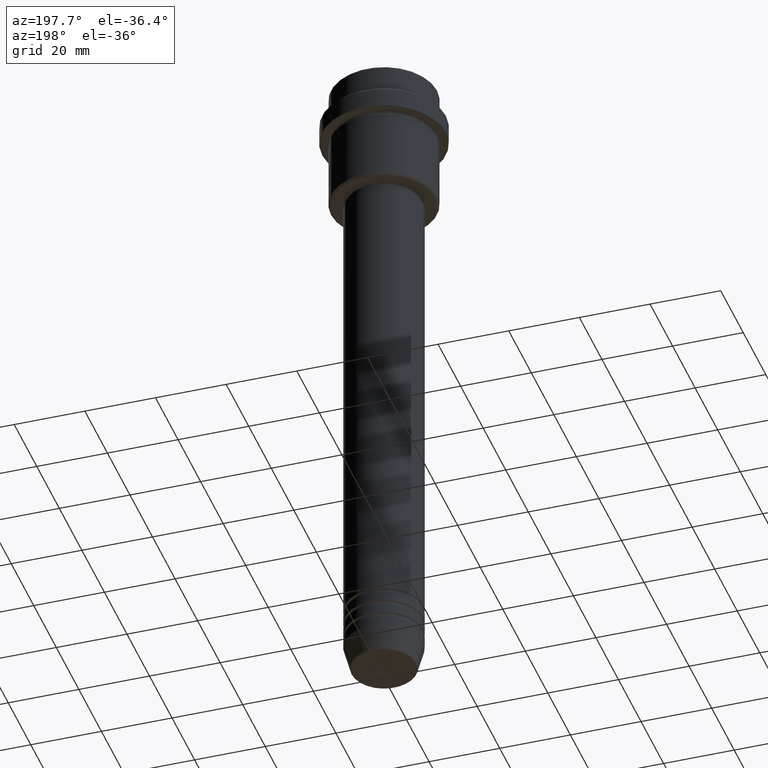
[diagram: clean part render]
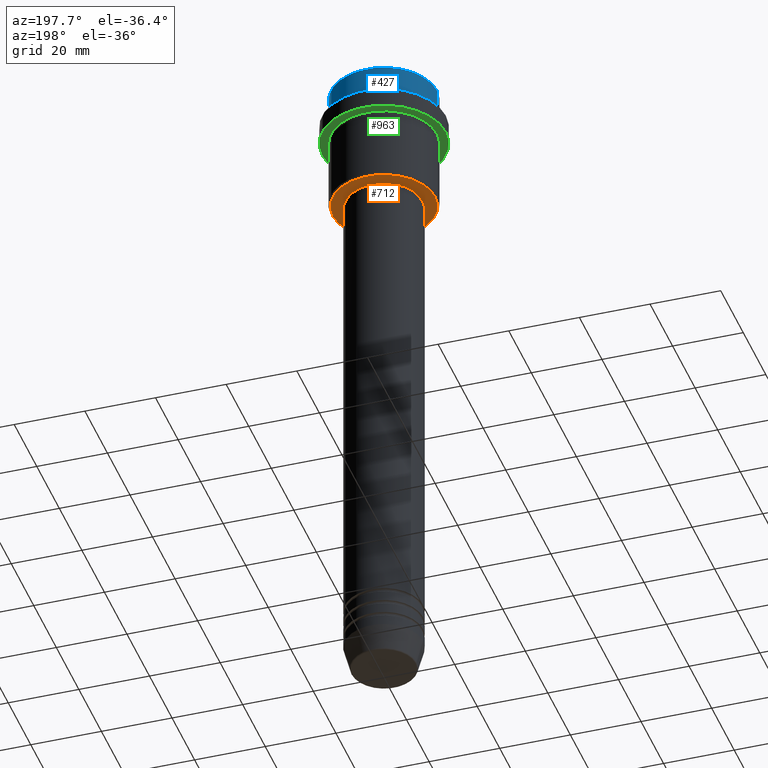
[diagram: same view with three faces highlighted in distinct colors, each labeled with its STEP entity id]
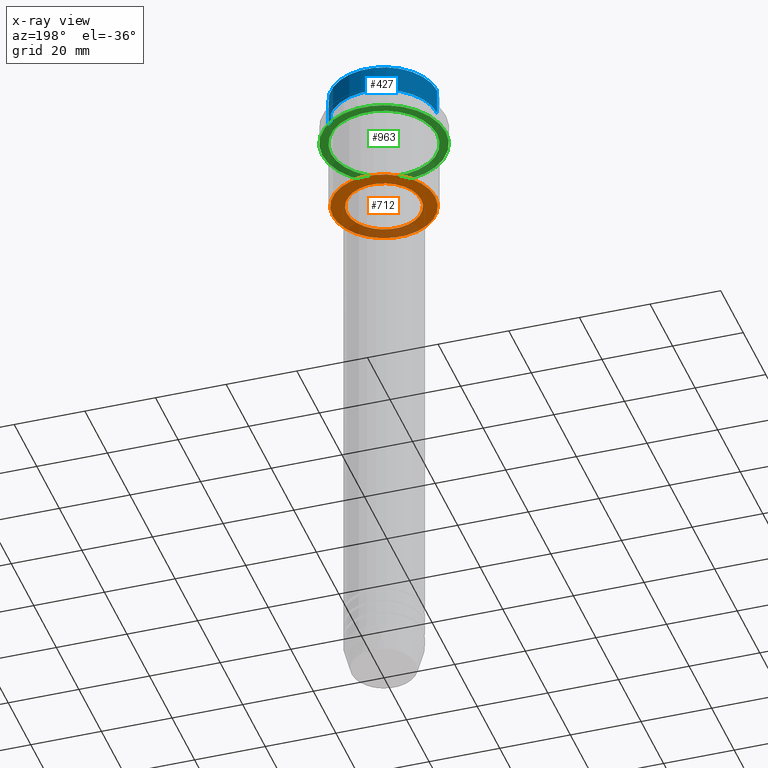
[diagram: x-ray of the same camera — body ghosted, the three highlighted faces saturated]
A machine part, auxiliary view with three faces highlighted in distinct colors.
The next image is the same camera in x-ray (body ghosted, the three faces saturated) — at least one of them is partly hidden behind the body in this view.
Their STEP definitions:

[orange] entity #712 — the highlighted planar face has unit normal (0, 0, -1).
#1 = EDGE_CURVE ( 'NONE', #235, #327, #809, .T. ) ;
#123 = AXIS2_PLACEMENT_3D ( 'NONE', #294, #730, #1387 ) ;
#182 = DIRECTION ( 'NONE',  ( 1.000000000000000000, 0.000000000000000000, 0.000000000000000000 ) ) ;
#202 = VERTEX_POINT ( 'NONE', #1116 ) ;
#235 = VERTEX_POINT ( 'NONE', #1242 ) ;
#288 = PLANE ( 'NONE',  #123 ) ;
#294 = CARTESIAN_POINT ( 'NONE',  ( 0.000000000000000000, 15.00000000000000000, -36.00000000000001421 ) ) ;
#303 = DIRECTION ( 'NONE',  ( -0.000000000000000000, -0.000000000000000000, 1.000000000000000000 ) ) ;
#326 = DIRECTION ( 'NONE',  ( -1.000000000000000000, 0.000000000000000000, 0.000000000000000000 ) ) ;
#327 = VERTEX_POINT ( 'NONE', #726 ) ;
#346 = EDGE_LOOP ( 'NONE', ( #667, #911 ) ) ;
#472 = CIRCLE ( 'NONE', #651, 14.50000000000001066 ) ;
#644 = DIRECTION ( 'NONE',  ( 1.000000000000000000, 0.000000000000000000, 0.000000000000000000 ) ) ;
#651 = AXIS2_PLACEMENT_3D ( 'NONE', #1414, #1206, #1408 ) ;
#667 = ORIENTED_EDGE ( 'NONE', *, *, #889, .T. ) ;
#695 = EDGE_LOOP ( 'NONE', ( #1219, #752 ) ) ;
#712 = ADVANCED_FACE ( 'NONE', ( #840, #1157 ), #288, .T. ) ;
#726 = CARTESIAN_POINT ( 'NONE',  ( 10.49999999999999289, 0.000000000000000000, -36.00000000000001421 ) ) ;
#730 = DIRECTION ( 'NONE',  ( 0.000000000000000000, 0.000000000000000000, -1.000000000000000000 ) ) ;
#752 = ORIENTED_EDGE ( 'NONE', *, *, #1, .T. ) ;
#809 = CIRCLE ( 'NONE', #986, 10.49999999999999289 ) ;
#821 = EDGE_CURVE ( 'NONE', #327, #235, #1127, .T. ) ;
#840 = FACE_OUTER_BOUND ( 'NONE', #346, .T. ) ;
#866 = CARTESIAN_POINT ( 'NONE',  ( 0.000000000000000000, 0.000000000000000000, -36.00000000000001421 ) ) ;
#876 = DIRECTION ( 'NONE',  ( 0.000000000000000000, 0.000000000000000000, -1.000000000000000000 ) ) ;
#889 = EDGE_CURVE ( 'NONE', #1313, #202, #472, .T. ) ;
#911 = ORIENTED_EDGE ( 'NONE', *, *, #1349, .T. ) ;
#966 = CARTESIAN_POINT ( 'NONE',  ( 0.000000000000000000, 0.000000000000000000, -36.00000000000001421 ) ) ;
#986 = AXIS2_PLACEMENT_3D ( 'NONE', #1374, #303, #182 ) ;
#1116 = CARTESIAN_POINT ( 'NONE',  ( -14.50000000000001066, 1.806354028742346591E-15, -36.00000000000001421 ) ) ;
#1127 = CIRCLE ( 'NONE', #1260, 10.49999999999999289 ) ;
#1157 = FACE_BOUND ( 'NONE', #695, .T. ) ;
#1187 = DIRECTION ( 'NONE',  ( -0.000000000000000000, -0.000000000000000000, 1.000000000000000000 ) ) ;
#1199 = CARTESIAN_POINT ( 'NONE',  ( 14.50000000000001066, 0.000000000000000000, -36.00000000000001421 ) ) ;
#1206 = DIRECTION ( 'NONE',  ( 0.000000000000000000, 0.000000000000000000, -1.000000000000000000 ) ) ;
#1218 = AXIS2_PLACEMENT_3D ( 'NONE', #966, #876, #326 ) ;
#1219 = ORIENTED_EDGE ( 'NONE', *, *, #821, .T. ) ;
#1242 = CARTESIAN_POINT ( 'NONE',  ( -10.49999999999999289, 1.285879139104720042E-15, -36.00000000000001421 ) ) ;
#1260 = AXIS2_PLACEMENT_3D ( 'NONE', #866, #1187, #644 ) ;
#1313 = VERTEX_POINT ( 'NONE', #1199 ) ;
#1349 = EDGE_CURVE ( 'NONE', #202, #1313, #1405, .T. ) ;
#1374 = CARTESIAN_POINT ( 'NONE',  ( 0.000000000000000000, 0.000000000000000000, -36.00000000000001421 ) ) ;
#1387 = DIRECTION ( 'NONE',  ( -1.000000000000000000, 0.000000000000000000, -0.000000000000000000 ) ) ;
#1405 = CIRCLE ( 'NONE', #1218, 14.50000000000001066 ) ;
#1408 = DIRECTION ( 'NONE',  ( -1.000000000000000000, 0.000000000000000000, 0.000000000000000000 ) ) ;
#1414 = CARTESIAN_POINT ( 'NONE',  ( 0.000000000000000000, 0.000000000000000000, -36.00000000000001421 ) ) ;

[blue] entity #427 — the highlighted cylindrical surface (partial cylindrical patch) has radius 15 mm, axis along (-0, -0, 1).
#83 = DIRECTION ( 'NONE',  ( -0.000000000000000000, -0.000000000000000000, 1.000000000000000000 ) ) ;
#124 = LINE ( 'NONE', #460, #1377 ) ;
#148 = AXIS2_PLACEMENT_3D ( 'NONE', #1284, #1299, #1409 ) ;
#150 = ORIENTED_EDGE ( 'NONE', *, *, #171, .T. ) ;
#151 = CIRCLE ( 'NONE', #511, 15.00000000000000000 ) ;
#159 = EDGE_LOOP ( 'NONE', ( #1138, #150, #635, #1413 ) ) ;
#167 = VERTEX_POINT ( 'NONE', #204 ) ;
#171 = EDGE_CURVE ( 'NONE', #167, #187, #124, .T. ) ;
#187 = VERTEX_POINT ( 'NONE', #1351 ) ;
#204 = CARTESIAN_POINT ( 'NONE',  ( -15.00000000000000000, 1.836970198721029589E-15, -7.999999999999998224 ) ) ;
#296 = FACE_OUTER_BOUND ( 'NONE', #159, .T. ) ;
#427 = ADVANCED_FACE ( 'NONE', ( #296 ), #932, .T. ) ;
#435 = CARTESIAN_POINT ( 'NONE',  ( 15.00000000000000000, 0.000000000000000000, -0.5000000000000108802 ) ) ;
#460 = CARTESIAN_POINT ( 'NONE',  ( -15.00000000000000000, 1.836970198721029589E-15, 0.000000000000000000 ) ) ;
#511 = AXIS2_PLACEMENT_3D ( 'NONE', #652, #780, #774 ) ;
#552 = EDGE_CURVE ( 'NONE', #187, #569, #650, .T. ) ;
#569 = VERTEX_POINT ( 'NONE', #435 ) ;
#635 = ORIENTED_EDGE ( 'NONE', *, *, #552, .T. ) ;
#650 = CIRCLE ( 'NONE', #148, 15.00000000000000000 ) ;
#652 = CARTESIAN_POINT ( 'NONE',  ( 0.000000000000000000, 0.000000000000000000, -7.999999999999998224 ) ) ;
#672 = LINE ( 'NONE', #1073, #858 ) ;
#774 = DIRECTION ( 'NONE',  ( 1.000000000000000000, 0.000000000000000000, 0.000000000000000000 ) ) ;
#780 = DIRECTION ( 'NONE',  ( -0.000000000000000000, -0.000000000000000000, 1.000000000000000000 ) ) ;
#858 = VECTOR ( 'NONE', #1295, 1000.000000000000000 ) ;
#864 = EDGE_CURVE ( 'NONE', #995, #167, #151, .T. ) ;
#891 = DIRECTION ( 'NONE',  ( -0.000000000000000000, -0.000000000000000000, 1.000000000000000000 ) ) ;
#932 = CYLINDRICAL_SURFACE ( 'NONE', #1401, 15.00000000000000000 ) ;
#995 = VERTEX_POINT ( 'NONE', #1125 ) ;
#1073 = CARTESIAN_POINT ( 'NONE',  ( 15.00000000000000000, 0.000000000000000000, 0.000000000000000000 ) ) ;
#1125 = CARTESIAN_POINT ( 'NONE',  ( 15.00000000000000000, 0.000000000000000000, -7.999999999999998224 ) ) ;
#1138 = ORIENTED_EDGE ( 'NONE', *, *, #864, .T. ) ;
#1262 = DIRECTION ( 'NONE',  ( 1.000000000000000000, 0.000000000000000000, 0.000000000000000000 ) ) ;
#1267 = EDGE_CURVE ( 'NONE', #995, #569, #672, .T. ) ;
#1284 = CARTESIAN_POINT ( 'NONE',  ( 0.000000000000000000, 0.000000000000000000, -0.5000000000000108802 ) ) ;
#1295 = DIRECTION ( 'NONE',  ( -0.000000000000000000, -0.000000000000000000, 1.000000000000000000 ) ) ;
#1299 = DIRECTION ( 'NONE',  ( 0.000000000000000000, 0.000000000000000000, -1.000000000000000000 ) ) ;
#1351 = CARTESIAN_POINT ( 'NONE',  ( -15.00000000000000000, 1.836970198721029589E-15, -0.5000000000000108802 ) ) ;
#1372 = CARTESIAN_POINT ( 'NONE',  ( 0.000000000000000000, 0.000000000000000000, 0.000000000000000000 ) ) ;
#1377 = VECTOR ( 'NONE', #891, 1000.000000000000000 ) ;
#1401 = AXIS2_PLACEMENT_3D ( 'NONE', #1372, #83, #1262 ) ;
#1409 = DIRECTION ( 'NONE',  ( 1.000000000000000000, 0.000000000000000000, 0.000000000000000000 ) ) ;
#1413 = ORIENTED_EDGE ( 'NONE', *, *, #1267, .F. ) ;

[green] entity #963 — the highlighted planar face has unit normal (0, 0, -1).
#6 = CARTESIAN_POINT ( 'NONE',  ( 17.50000000000000000, 0.000000000000000000, -15.00000000000000178 ) ) ;
#20 = EDGE_CURVE ( 'NONE', #559, #80, #120, .T. ) ;
#50 = AXIS2_PLACEMENT_3D ( 'NONE', #1119, #917, #1245 ) ;
#58 = DIRECTION ( 'NONE',  ( -1.000000000000000000, 0.000000000000000000, 0.000000000000000000 ) ) ;
#80 = VERTEX_POINT ( 'NONE', #543 ) ;
#92 = VERTEX_POINT ( 'NONE', #874 ) ;
#118 = EDGE_LOOP ( 'NONE', ( #265, #228 ) ) ;
#120 = CIRCLE ( 'NONE', #674, 17.50000000000000000 ) ;
#136 = FACE_OUTER_BOUND ( 'NONE', #118, .T. ) ;
#225 = CARTESIAN_POINT ( 'NONE',  ( -14.99999999999999645, 0.000000000000000000, -15.00000000000000000 ) ) ;
#228 = ORIENTED_EDGE ( 'NONE', *, *, #1210, .F. ) ;
#265 = ORIENTED_EDGE ( 'NONE', *, *, #20, .F. ) ;
#273 = PLANE ( 'NONE',  #50 ) ;
#308 = AXIS2_PLACEMENT_3D ( 'NONE', #1039, #736, #58 ) ;
#359 = ORIENTED_EDGE ( 'NONE', *, *, #527, .T. ) ;
#527 = EDGE_CURVE ( 'NONE', #92, #1354, #811, .T. ) ;
#543 = CARTESIAN_POINT ( 'NONE',  ( -17.50000000000000000, 2.143131898507868248E-15, -15.00000000000000178 ) ) ;
#559 = VERTEX_POINT ( 'NONE', #6 ) ;
#586 = ORIENTED_EDGE ( 'NONE', *, *, #768, .T. ) ;
#654 = CIRCLE ( 'NONE', #993, 17.50000000000000000 ) ;
#674 = AXIS2_PLACEMENT_3D ( 'NONE', #835, #1252, #1041 ) ;
#736 = DIRECTION ( 'NONE',  ( -0.000000000000000000, -0.000000000000000000, 1.000000000000000000 ) ) ;
#768 = EDGE_CURVE ( 'NONE', #1354, #92, #991, .T. ) ;
#811 = CIRCLE ( 'NONE', #1308, 14.99999999999999645 ) ;
#835 = CARTESIAN_POINT ( 'NONE',  ( 0.000000000000000000, 0.000000000000000000, -15.00000000000000178 ) ) ;
#844 = DIRECTION ( 'NONE',  ( -0.000000000000000000, -0.000000000000000000, 1.000000000000000000 ) ) ;
#861 = DIRECTION ( 'NONE',  ( -1.000000000000000000, 0.000000000000000000, 0.000000000000000000 ) ) ;
#874 = CARTESIAN_POINT ( 'NONE',  ( 14.99999999999999645, 1.836970198721029194E-15, -15.00000000000000000 ) ) ;
#917 = DIRECTION ( 'NONE',  ( 0.000000000000000000, 0.000000000000000000, -1.000000000000000000 ) ) ;
#930 = CARTESIAN_POINT ( 'NONE',  ( 0.000000000000000000, 0.000000000000000000, -15.00000000000000178 ) ) ;
#963 = ADVANCED_FACE ( 'NONE', ( #1225, #136 ), #273, .T. ) ;
#991 = CIRCLE ( 'NONE', #308, 14.99999999999999645 ) ;
#993 = AXIS2_PLACEMENT_3D ( 'NONE', #930, #844, #1369 ) ;
#1039 = CARTESIAN_POINT ( 'NONE',  ( 0.000000000000000000, 0.000000000000000000, -15.00000000000000000 ) ) ;
#1041 = DIRECTION ( 'NONE',  ( 1.000000000000000000, 0.000000000000000000, 0.000000000000000000 ) ) ;
#1071 = DIRECTION ( 'NONE',  ( -0.000000000000000000, -0.000000000000000000, 1.000000000000000000 ) ) ;
#1088 = CARTESIAN_POINT ( 'NONE',  ( 0.000000000000000000, 0.000000000000000000, -15.00000000000000000 ) ) ;
#1119 = CARTESIAN_POINT ( 'NONE',  ( 0.000000000000000000, 17.50000000000000000, -15.00000000000000000 ) ) ;
#1210 = EDGE_CURVE ( 'NONE', #80, #559, #654, .T. ) ;
#1225 = FACE_BOUND ( 'NONE', #1279, .T. ) ;
#1245 = DIRECTION ( 'NONE',  ( -1.000000000000000000, 0.000000000000000000, -0.000000000000000000 ) ) ;
#1252 = DIRECTION ( 'NONE',  ( -0.000000000000000000, -0.000000000000000000, 1.000000000000000000 ) ) ;
#1279 = EDGE_LOOP ( 'NONE', ( #586, #359 ) ) ;
#1308 = AXIS2_PLACEMENT_3D ( 'NONE', #1088, #1071, #861 ) ;
#1354 = VERTEX_POINT ( 'NONE', #225 ) ;
#1369 = DIRECTION ( 'NONE',  ( 1.000000000000000000, 0.000000000000000000, 0.000000000000000000 ) ) ;